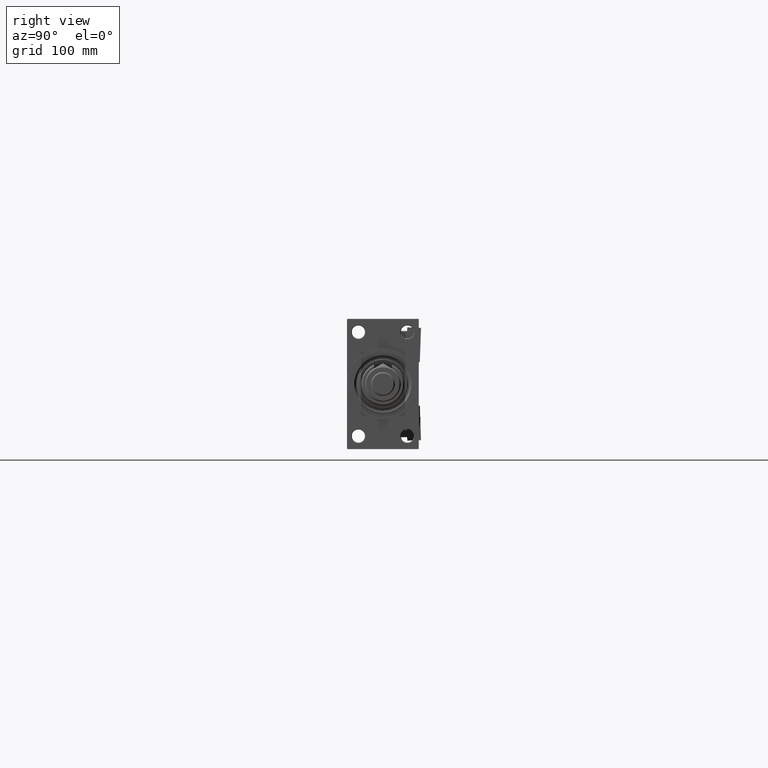
[diagram: clean part render]
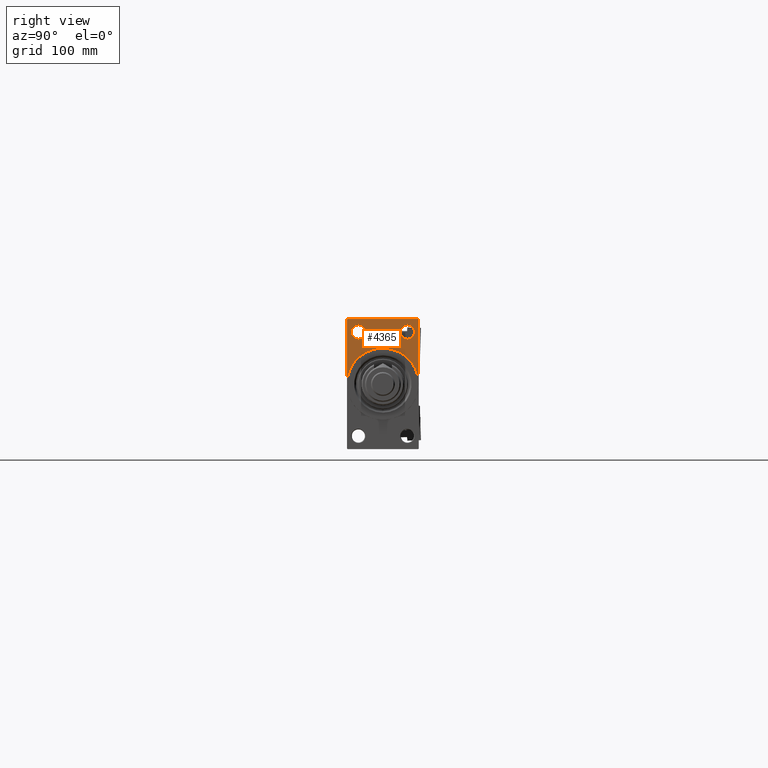
[diagram: same view with one face highlighted and labeled with its STEP entity id]
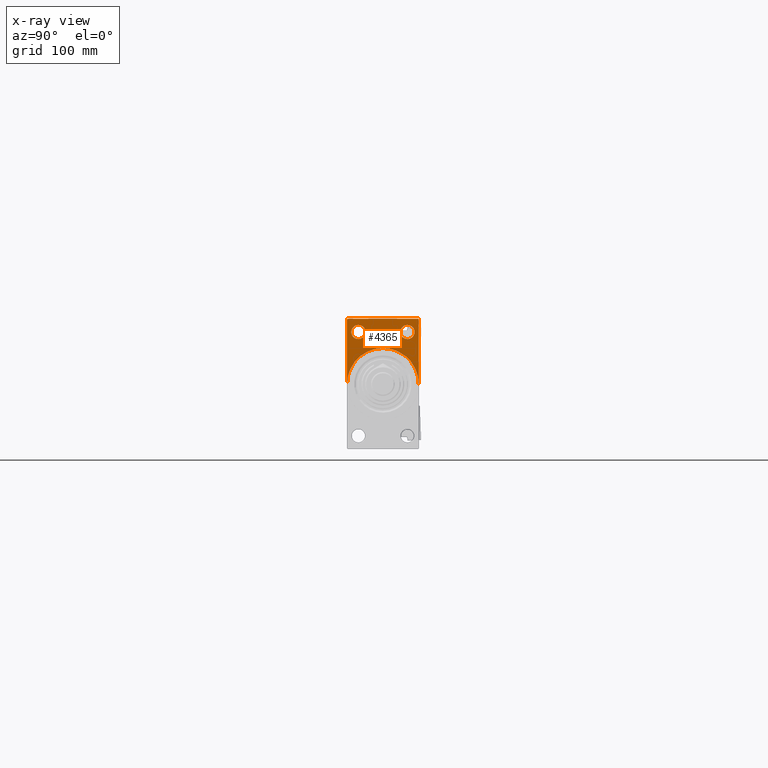
[diagram: x-ray of the same camera — body ghosted, the highlighted face saturated]
A machine part, right view. The second image highlights one B-rep face of the part: STEP entity #4365.
The next image is the same camera in x-ray: the body ghosted, the highlighted face saturated — about 0% of this face is hidden behind the body in this view.
In plain terms, the highlighted planar face has unit normal (-1, 0, 0).
Its self-contained STEP definition (entity closure, byte-faithful):
#14 = AXIS2_PLACEMENT_3D ( 'NONE', #9922, #25611, #17916 ) ;
#281 = CIRCLE ( 'NONE', #12164, 5.999999999999950262 ) ;
#356 = CARTESIAN_POINT ( 'NONE',  ( 468.0000000000000000, 29.50000000000004974, 54.49999999999999289 ) ) ;
#3130 = AXIS2_PLACEMENT_3D ( 'NONE', #19766, #44227, #51931 ) ;
#3300 = EDGE_CURVE ( 'NONE', #15514, #3383, #20565, .T. ) ;
#3361 = VECTOR ( 'NONE', #47538, 1000.000000000000000 ) ;
#3383 = VERTEX_POINT ( 'NONE', #18684 ) ;
#3577 = CIRCLE ( 'NONE', #51122, 5.999999999999950262 ) ;
#3701 = VERTEX_POINT ( 'NONE', #22874 ) ;
#3876 = AXIS2_PLACEMENT_3D ( 'NONE', #29683, #41642, #32877 ) ;
#4365 = ADVANCED_FACE ( 'NONE', ( #13135, #9659, #22171 ), #5662, .F. ) ;
#4626 = LINE ( 'NONE', #37576, #18706 ) ;
#5142 = DIRECTION ( 'NONE',  ( 0.000000000000000000, 0.000000000000000000, -1.000000000000000000 ) ) ;
#5662 = PLANE ( 'NONE',  #14 ) ;
#6600 = EDGE_CURVE ( 'NONE', #15597, #3701, #11968, .T. ) ;
#8507 = CARTESIAN_POINT ( 'NONE',  ( 468.0000000000000000, 20.50000000000000000, 43.50000000000000000 ) ) ;
#8809 = CARTESIAN_POINT ( 'NONE',  ( 468.0000000000000000, -20.50000000000000000, 37.50000000000004974 ) ) ;
#8951 = ORIENTED_EDGE ( 'NONE', *, *, #17553, .F. ) ;
#9211 = VERTEX_POINT ( 'NONE', #52318 ) ;
#9659 = FACE_BOUND ( 'NONE', #30301, .T. ) ;
#9922 = CARTESIAN_POINT ( 'NONE',  ( 468.0000000000000000, 0.000000000000000000, 0.000000000000000000 ) ) ;
#11610 = EDGE_LOOP ( 'NONE', ( #35015, #21666 ) ) ;
#11968 = CIRCLE ( 'NONE', #41691, 30.00000000000000000 ) ;
#12164 = AXIS2_PLACEMENT_3D ( 'NONE', #20882, #24602, #45076 ) ;
#13135 = FACE_BOUND ( 'NONE', #11610, .T. ) ;
#13526 = VECTOR ( 'NONE', #41437, 1000.000000000000000 ) ;
#13726 = ORIENTED_EDGE ( 'NONE', *, *, #6600, .F. ) ;
#14826 = CARTESIAN_POINT ( 'NONE',  ( 468.0000000000000000, 29.99999999999999645, 53.99999999999999289 ) ) ;
#14957 = CARTESIAN_POINT ( 'NONE',  ( 468.0000000000000000, -30.00000000000000000, 53.99999999999994316 ) ) ;
#15093 = CARTESIAN_POINT ( 'NONE',  ( 468.0000000000000000, 30.00000000000000000, 0.000000000000000000 ) ) ;
#15456 = CARTESIAN_POINT ( 'NONE',  ( 468.0000000000000000, 0.000000000000000000, 0.000000000000000000 ) ) ;
#15514 = VERTEX_POINT ( 'NONE', #14826 ) ;
#15597 = VERTEX_POINT ( 'NONE', #15093 ) ;
#15837 = ORIENTED_EDGE ( 'NONE', *, *, #17836, .T. ) ;
#16043 = VERTEX_POINT ( 'NONE', #48230 ) ;
#16651 = ORIENTED_EDGE ( 'NONE', *, *, #25686, .T. ) ;
#17299 = DIRECTION ( 'NONE',  ( -1.000000000000000000, 0.000000000000000000, -0.000000000000000000 ) ) ;
#17553 = EDGE_CURVE ( 'NONE', #3701, #9211, #39863, .T. ) ;
#17836 = EDGE_CURVE ( 'NONE', #28258, #37211, #45950, .T. ) ;
#17911 = EDGE_CURVE ( 'NONE', #3383, #28258, #38497, .T. ) ;
#17916 = DIRECTION ( 'NONE',  ( -0.000000000000000000, 0.000000000000000000, 1.000000000000000000 ) ) ;
#18101 = ORIENTED_EDGE ( 'NONE', *, *, #3300, .T. ) ;
#18684 = CARTESIAN_POINT ( 'NONE',  ( 468.0000000000000000, 29.50000000000004974, 54.49999999999999289 ) ) ;
#18706 = VECTOR ( 'NONE', #5142, 1000.000000000000000 ) ;
#18987 = EDGE_CURVE ( 'NONE', #15514, #15597, #4626, .T. ) ;
#19164 = DIRECTION ( 'NONE',  ( 0.000000000000000000, 0.000000000000000000, -1.000000000000000000 ) ) ;
#19339 = VERTEX_POINT ( 'NONE', #8809 ) ;
#19766 = CARTESIAN_POINT ( 'NONE',  ( 468.0000000000000000, 20.50000000000000000, 43.50000000000000000 ) ) ;
#20565 = LINE ( 'NONE', #356, #38190 ) ;
#20882 = CARTESIAN_POINT ( 'NONE',  ( 468.0000000000000000, -20.50000000000000000, 43.50000000000000000 ) ) ;
#21666 = ORIENTED_EDGE ( 'NONE', *, *, #44543, .T. ) ;
#22171 = FACE_OUTER_BOUND ( 'NONE', #51511, .T. ) ;
#22529 = LINE ( 'NONE', #30231, #39488 ) ;
#22874 = CARTESIAN_POINT ( 'NONE',  ( 468.0000000000000000, 0.000000000000000000, 30.00000000000000000 ) ) ;
#24113 = VERTEX_POINT ( 'NONE', #39191 ) ;
#24602 = DIRECTION ( 'NONE',  ( -1.000000000000000000, 0.000000000000000000, -0.000000000000000000 ) ) ;
#24743 = DIRECTION ( 'NONE',  ( 0.000000000000000000, 0.000000000000000000, 1.000000000000000000 ) ) ;
#25485 = VERTEX_POINT ( 'NONE', #26111 ) ;
#25611 = DIRECTION ( 'NONE',  ( -1.000000000000000000, 0.000000000000000000, -0.000000000000000000 ) ) ;
#25686 = EDGE_CURVE ( 'NONE', #25485, #24113, #3577, .T. ) ;
#26111 = CARTESIAN_POINT ( 'NONE',  ( 468.0000000000000000, 20.50000000000000000, 49.49999999999995026 ) ) ;
#26537 = CARTESIAN_POINT ( 'NONE',  ( 468.0000000000000000, 29.99999999999999645, 54.49999999999999289 ) ) ;
#27438 = CARTESIAN_POINT ( 'NONE',  ( 468.0000000000000000, -29.49999999999988987, 54.50000000000000000 ) ) ;
#28258 = VERTEX_POINT ( 'NONE', #27438 ) ;
#29683 = CARTESIAN_POINT ( 'NONE',  ( 468.0000000000000000, -20.50000000000000000, 43.50000000000000000 ) ) ;
#29711 = ORIENTED_EDGE ( 'NONE', *, *, #18987, .F. ) ;
#30231 = CARTESIAN_POINT ( 'NONE',  ( 468.0000000000000000, -30.00000000000000000, 54.50000000000000000 ) ) ;
#30301 = EDGE_LOOP ( 'NONE', ( #39785, #16651 ) ) ;
#30600 = DIRECTION ( 'NONE',  ( 1.000000000000000000, 0.000000000000000000, 0.000000000000000000 ) ) ;
#31134 = CIRCLE ( 'NONE', #3130, 5.999999999999950262 ) ;
#31678 = DIRECTION ( 'NONE',  ( 1.000000000000000000, 0.000000000000000000, 0.000000000000000000 ) ) ;
#31992 = ORIENTED_EDGE ( 'NONE', *, *, #17911, .T. ) ;
#32877 = DIRECTION ( 'NONE',  ( 0.000000000000000000, 0.000000000000000000, 1.000000000000000000 ) ) ;
#35015 = ORIENTED_EDGE ( 'NONE', *, *, #35906, .T. ) ;
#35358 = CARTESIAN_POINT ( 'NONE',  ( 468.0000000000000000, 0.000000000000000000, 0.000000000000000000 ) ) ;
#35906 = EDGE_CURVE ( 'NONE', #19339, #16043, #281, .T. ) ;
#37211 = VERTEX_POINT ( 'NONE', #14957 ) ;
#37291 = DIRECTION ( 'NONE',  ( 0.000000000000000000, -0.7071067811865081598, 0.7071067811865868746 ) ) ;
#37576 = CARTESIAN_POINT ( 'NONE',  ( 468.0000000000000000, 29.99999999999999645, 54.49999999999999289 ) ) ;
#38149 = AXIS2_PLACEMENT_3D ( 'NONE', #35358, #30600, #19164 ) ;
#38190 = VECTOR ( 'NONE', #37291, 1000.000000000000000 ) ;
#38497 = LINE ( 'NONE', #26537, #3361 ) ;
#39191 = CARTESIAN_POINT ( 'NONE',  ( 468.0000000000000000, 20.50000000000000000, 37.50000000000004974 ) ) ;
#39488 = VECTOR ( 'NONE', #50419, 1000.000000000000000 ) ;
#39553 = CIRCLE ( 'NONE', #3876, 5.999999999999950262 ) ;
#39785 = ORIENTED_EDGE ( 'NONE', *, *, #46777, .T. ) ;
#39863 = CIRCLE ( 'NONE', #38149, 30.00000000000000000 ) ;
#41437 = DIRECTION ( 'NONE',  ( -0.000000000000000000, -0.7071067811865843211, -0.7071067811865107133 ) ) ;
#41642 = DIRECTION ( 'NONE',  ( -1.000000000000000000, 0.000000000000000000, -0.000000000000000000 ) ) ;
#41691 = AXIS2_PLACEMENT_3D ( 'NONE', #15456, #31678, #47628 ) ;
#41967 = CARTESIAN_POINT ( 'NONE',  ( 468.0000000000000000, -30.00000000000000000, 53.99999999999994316 ) ) ;
#42831 = EDGE_CURVE ( 'NONE', #37211, #9211, #22529, .T. ) ;
#44227 = DIRECTION ( 'NONE',  ( -1.000000000000000000, 0.000000000000000000, -0.000000000000000000 ) ) ;
#44543 = EDGE_CURVE ( 'NONE', #16043, #19339, #39553, .T. ) ;
#45076 = DIRECTION ( 'NONE',  ( 0.000000000000000000, 0.000000000000000000, 1.000000000000000000 ) ) ;
#45425 = ORIENTED_EDGE ( 'NONE', *, *, #42831, .T. ) ;
#45950 = LINE ( 'NONE', #41967, #13526 ) ;
#46777 = EDGE_CURVE ( 'NONE', #24113, #25485, #31134, .T. ) ;
#47538 = DIRECTION ( 'NONE',  ( 0.000000000000000000, -1.000000000000000000, 1.156482317317871478E-16 ) ) ;
#47628 = DIRECTION ( 'NONE',  ( 0.000000000000000000, 0.000000000000000000, -1.000000000000000000 ) ) ;
#48230 = CARTESIAN_POINT ( 'NONE',  ( 468.0000000000000000, -20.50000000000000000, 49.49999999999995026 ) ) ;
#50419 = DIRECTION ( 'NONE',  ( 0.000000000000000000, 0.000000000000000000, -1.000000000000000000 ) ) ;
#51122 = AXIS2_PLACEMENT_3D ( 'NONE', #8507, #17299, #24743 ) ;
#51511 = EDGE_LOOP ( 'NONE', ( #31992, #15837, #45425, #8951, #13726, #29711, #18101 ) ) ;
#51931 = DIRECTION ( 'NONE',  ( 0.000000000000000000, 0.000000000000000000, 1.000000000000000000 ) ) ;
#52318 = CARTESIAN_POINT ( 'NONE',  ( 468.0000000000000000, -30.00000000000000000, 0.000000000000000000 ) ) ;